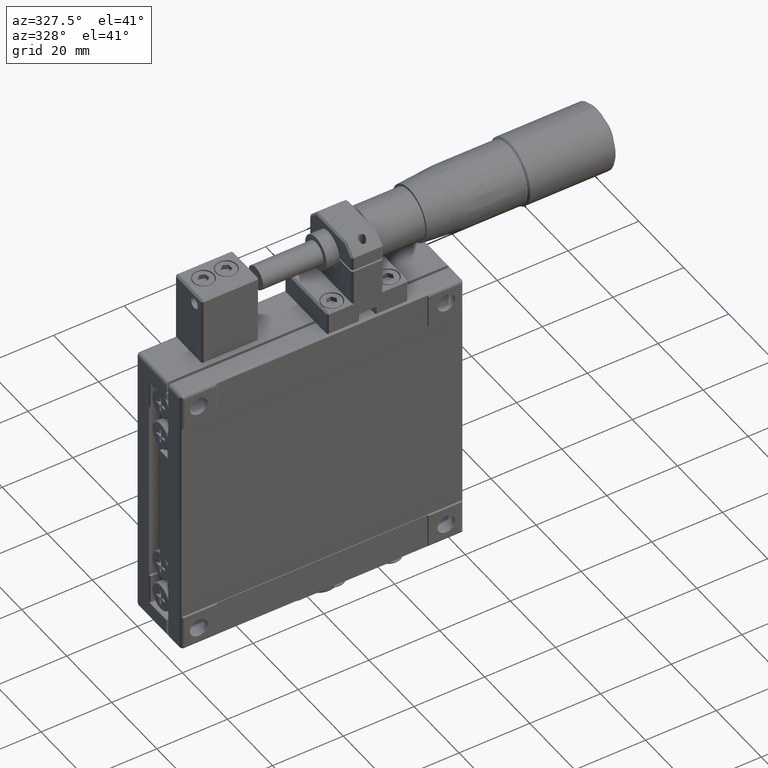
[diagram: clean part render]
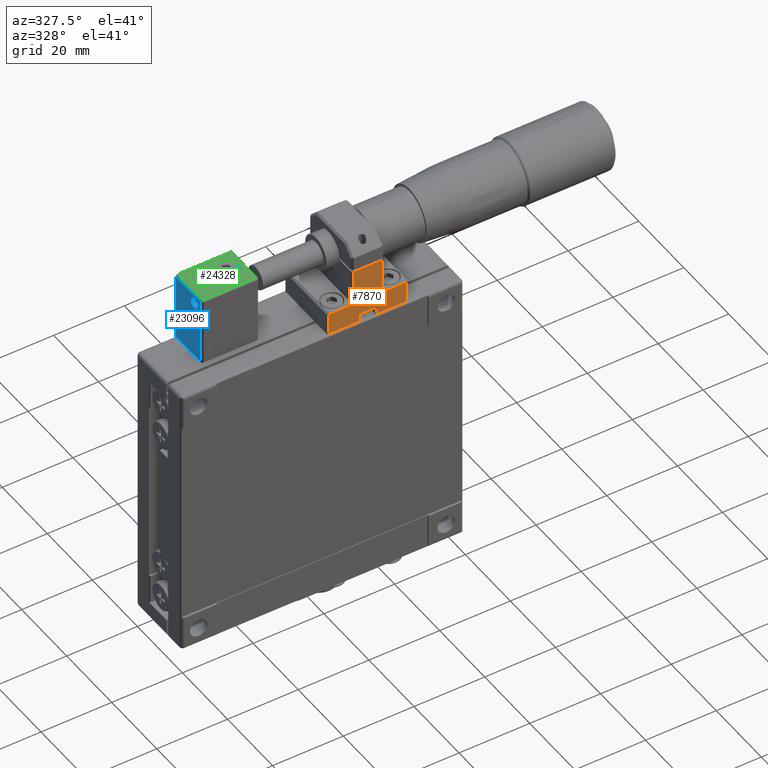
[diagram: same view with three faces highlighted in distinct colors, each labeled with its STEP entity id]
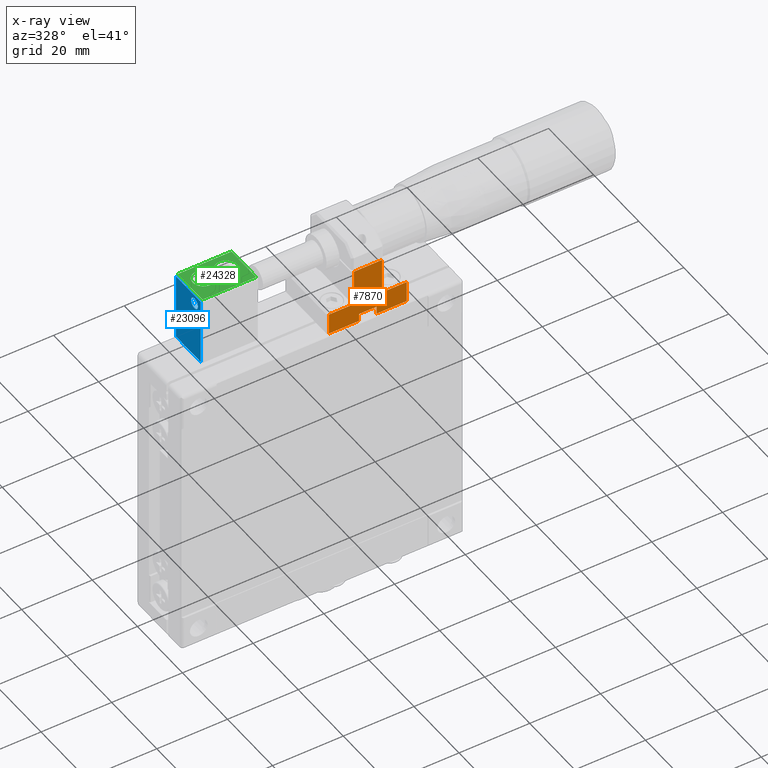
[diagram: x-ray of the same camera — body ghosted, the three highlighted faces saturated]
A machine part, auxiliary view with three faces highlighted in distinct colors.
The next image is the same camera in x-ray (body ghosted, the three faces saturated) — at least one of them is partly hidden behind the body in this view.
Their STEP definitions:

[orange] entity #7870 — the highlighted planar face has unit normal (0, -1, 0).
#1027 = EDGE_CURVE ( 'NONE', #26476, #29745, #16459, .T. ) ;
#1367 = LINE ( 'NONE', #16938, #67115 ) ;
#1692 = EDGE_CURVE ( 'NONE', #65323, #41707, #38551, .T. ) ;
#2338 = ORIENTED_EDGE ( 'NONE', *, *, #1692, .T. ) ;
#2421 = ORIENTED_EDGE ( 'NONE', *, *, #39198, .T. ) ;
#2515 = LINE ( 'NONE', #39122, #27799 ) ;
#3745 = ORIENTED_EDGE ( 'NONE', *, *, #17377, .F. ) ;
#4371 = CARTESIAN_POINT ( 'NONE',  ( -3.190117252931320202, -6.460050251256290288, 40.00000000000000000 ) ) ;
#6747 = ORIENTED_EDGE ( 'NONE', *, *, #11652, .T. ) ;
#6838 = CARTESIAN_POINT ( 'NONE',  ( -2.690117252931320202, -6.460050251256290288, 40.50000000000000000 ) ) ;
#7276 = VECTOR ( 'NONE', #36314, 1000.000000000000000 ) ;
#7870 = ADVANCED_FACE ( 'NONE', ( #35229 ), #55879, .T. ) ;
#7932 = VECTOR ( 'NONE', #32941, 1000.000000000000000 ) ;
#8022 = CARTESIAN_POINT ( 'NONE',  ( -3.190117252931320202, -6.460050251256290288, 46.50000000000000000 ) ) ;
#8332 = ORIENTED_EDGE ( 'NONE', *, *, #23468, .F. ) ;
#9405 = CARTESIAN_POINT ( 'NONE',  ( -2.690117252931320202, -6.460050251256290288, 46.50000000000000000 ) ) ;
#11652 = EDGE_CURVE ( 'NONE', #37458, #40289, #17638, .T. ) ;
#11866 = DIRECTION ( 'NONE',  ( 1.000000000000000000, 0.000000000000000000, 0.000000000000000000 ) ) ;
#13062 = LINE ( 'NONE', #49342, #39378 ) ;
#13589 = VECTOR ( 'NONE', #67077, 1000.000000000000000 ) ;
#13998 = CARTESIAN_POINT ( 'NONE',  ( -3.190117252931314873, -6.460050251256290288, 56.75000000000000000 ) ) ;
#14847 = ORIENTED_EDGE ( 'NONE', *, *, #33766, .T. ) ;
#14859 = CARTESIAN_POINT ( 'NONE',  ( 4.309882747068679798, -6.460050251256290288, 56.75000000000000000 ) ) ;
#15424 = VERTEX_POINT ( 'NONE', #61136 ) ;
#16459 = LINE ( 'NONE', #46665, #29542 ) ;
#16586 = CARTESIAN_POINT ( 'NONE',  ( 19.30988274706869845, -6.460050251256290288, 46.50000000000000000 ) ) ;
#16938 = CARTESIAN_POINT ( 'NONE',  ( 19.80988274706869845, -6.460050251256290288, 40.50000000000000000 ) ) ;
#17059 = CARTESIAN_POINT ( 'NONE',  ( 4.309882747068679798, -6.460050251256290288, 46.50000000000000000 ) ) ;
#17148 = VECTOR ( 'NONE', #19410, 1000.000000000000000 ) ;
#17377 = EDGE_CURVE ( 'NONE', #33738, #29745, #34366, .T. ) ;
#17638 = LINE ( 'NONE', #43745, #7932 ) ;
#17753 = CARTESIAN_POINT ( 'NONE',  ( 19.30988274706869845, -6.460050251256290288, 40.50000000000000000 ) ) ;
#17876 = EDGE_CURVE ( 'NONE', #62940, #48281, #1367, .T. ) ;
#19410 = DIRECTION ( 'NONE',  ( 0.000000000000000000, 0.000000000000000000, -1.000000000000000000 ) ) ;
#19462 = CARTESIAN_POINT ( 'NONE',  ( 10.80988274706868069, -6.460050251256290288, 40.50000000000000000 ) ) ;
#20466 = DIRECTION ( 'NONE',  ( 0.000000000000000000, 0.000000000000000000, -1.000000000000000000 ) ) ;
#20614 = EDGE_CURVE ( 'NONE', #41707, #37458, #32628, .T. ) ;
#23468 = EDGE_CURVE ( 'NONE', #56838, #40289, #28573, .T. ) ;
#23923 = ORIENTED_EDGE ( 'NONE', *, *, #55340, .F. ) ;
#26476 = VERTEX_POINT ( 'NONE', #39859 ) ;
#26993 = VECTOR ( 'NONE', #49383, 1000.000000000000000 ) ;
#27799 = VECTOR ( 'NONE', #44199, 1000.000000000000000 ) ;
#28573 = LINE ( 'NONE', #65856, #17148 ) ;
#28739 = AXIS2_PLACEMENT_3D ( 'NONE', #4371, #30805, #56220 ) ;
#28914 = DIRECTION ( 'NONE',  ( 1.000000000000000000, 0.000000000000000000, -2.040851148208009970E-16 ) ) ;
#29542 = VECTOR ( 'NONE', #32419, 1000.000000000000000 ) ;
#29745 = VERTEX_POINT ( 'NONE', #58512 ) ;
#29816 = CARTESIAN_POINT ( 'NONE',  ( 5.809882747068679798, -6.460050251256290288, 40.50000000000000000 ) ) ;
#30208 = VERTEX_POINT ( 'NONE', #16586 ) ;
#30471 = LINE ( 'NONE', #56891, #13589 ) ;
#30805 = DIRECTION ( 'NONE',  ( 0.000000000000000000, -1.000000000000000000, 0.000000000000000000 ) ) ;
#32241 = ORIENTED_EDGE ( 'NONE', *, *, #56174, .T. ) ;
#32419 = DIRECTION ( 'NONE',  ( 2.040851148208009970E-16, 0.000000000000000000, 1.000000000000000000 ) ) ;
#32628 = LINE ( 'NONE', #6838, #56154 ) ;
#32941 = DIRECTION ( 'NONE',  ( 1.000000000000000000, 0.000000000000000000, 0.000000000000000000 ) ) ;
#33738 = VERTEX_POINT ( 'NONE', #14859 ) ;
#33766 = EDGE_CURVE ( 'NONE', #48281, #30208, #30471, .T. ) ;
#34366 = LINE ( 'NONE', #13998, #38947 ) ;
#34633 = VECTOR ( 'NONE', #20466, 1000.000000000000000 ) ;
#35051 = CARTESIAN_POINT ( 'NONE',  ( -2.690117252931314873, -6.460050251256290288, 40.50000000000000000 ) ) ;
#35229 = FACE_OUTER_BOUND ( 'NONE', #51497, .T. ) ;
#35910 = CARTESIAN_POINT ( 'NONE',  ( 5.809882747068679798, -6.460050251256290288, 42.70000000000000284 ) ) ;
#36314 = DIRECTION ( 'NONE',  ( -1.000000000000000000, 0.000000000000000000, 9.912705577010330480E-16 ) ) ;
#37458 = VERTEX_POINT ( 'NONE', #35051 ) ;
#38551 = LINE ( 'NONE', #8022, #26993 ) ;
#38947 = VECTOR ( 'NONE', #28914, 1000.000000000000000 ) ;
#39122 = CARTESIAN_POINT ( 'NONE',  ( -3.190117252931320202, -6.460050251256290288, 42.70000000000000284 ) ) ;
#39198 = EDGE_CURVE ( 'NONE', #33738, #65323, #51333, .T. ) ;
#39378 = VECTOR ( 'NONE', #54433, 1000.000000000000000 ) ;
#39859 = CARTESIAN_POINT ( 'NONE',  ( 12.30988274706868069, -6.460050251256290288, 46.50000000000000000 ) ) ;
#40289 = VERTEX_POINT ( 'NONE', #29816 ) ;
#41707 = VERTEX_POINT ( 'NONE', #9405 ) ;
#42042 = EDGE_CURVE ( 'NONE', #62940, #15424, #13062, .T. ) ;
#42066 = LINE ( 'NONE', #62059, #7276 ) ;
#43745 = CARTESIAN_POINT ( 'NONE',  ( 19.80988274706869845, -6.460050251256290288, 40.50000000000000000 ) ) ;
#44199 = DIRECTION ( 'NONE',  ( -1.000000000000000000, 0.000000000000000000, 0.000000000000000000 ) ) ;
#46618 = ORIENTED_EDGE ( 'NONE', *, *, #42042, .F. ) ;
#46665 = CARTESIAN_POINT ( 'NONE',  ( 12.30988274706868069, -6.460050251256290288, 61.00000000000000000 ) ) ;
#48198 = DIRECTION ( 'NONE',  ( 0.000000000000000000, 0.000000000000000000, -1.000000000000000000 ) ) ;
#48281 = VERTEX_POINT ( 'NONE', #17753 ) ;
#49342 = CARTESIAN_POINT ( 'NONE',  ( 10.80988274706868069, -6.460050251256290288, 40.00000000000000000 ) ) ;
#49383 = DIRECTION ( 'NONE',  ( -1.000000000000000000, 0.000000000000000000, 0.000000000000000000 ) ) ;
#49451 = ORIENTED_EDGE ( 'NONE', *, *, #1027, .T. ) ;
#51333 = LINE ( 'NONE', #56735, #34633 ) ;
#51497 = EDGE_LOOP ( 'NONE', ( #46618, #51946, #14847, #32241, #49451, #3745, #2421, #2338, #60576, #6747, #8332, #23923 ) ) ;
#51946 = ORIENTED_EDGE ( 'NONE', *, *, #17876, .T. ) ;
#54433 = DIRECTION ( 'NONE',  ( 0.000000000000000000, 0.000000000000000000, 1.000000000000000000 ) ) ;
#55340 = EDGE_CURVE ( 'NONE', #15424, #56838, #2515, .T. ) ;
#55879 = PLANE ( 'NONE',  #28739 ) ;
#56154 = VECTOR ( 'NONE', #48198, 1000.000000000000000 ) ;
#56174 = EDGE_CURVE ( 'NONE', #30208, #26476, #42066, .T. ) ;
#56220 = DIRECTION ( 'NONE',  ( 0.000000000000000000, 0.000000000000000000, -1.000000000000000000 ) ) ;
#56735 = CARTESIAN_POINT ( 'NONE',  ( 4.309882747068679798, -6.460050251256290288, 47.00000000000000000 ) ) ;
#56838 = VERTEX_POINT ( 'NONE', #35910 ) ;
#56891 = CARTESIAN_POINT ( 'NONE',  ( 19.30988274706869845, -6.460050251256290288, 47.00000000000000000 ) ) ;
#58512 = CARTESIAN_POINT ( 'NONE',  ( 12.30988274706868069, -6.460050251256290288, 56.75000000000000000 ) ) ;
#60576 = ORIENTED_EDGE ( 'NONE', *, *, #20614, .T. ) ;
#61136 = CARTESIAN_POINT ( 'NONE',  ( 10.80988274706868069, -6.460050251256290288, 42.70000000000000284 ) ) ;
#62059 = CARTESIAN_POINT ( 'NONE',  ( 12.80988274706868069, -6.460050251256290288, 46.50000000000000000 ) ) ;
#62940 = VERTEX_POINT ( 'NONE', #19462 ) ;
#65323 = VERTEX_POINT ( 'NONE', #17059 ) ;
#65856 = CARTESIAN_POINT ( 'NONE',  ( 5.809882747068679798, -6.460050251256290288, 40.00000000000000000 ) ) ;
#67077 = DIRECTION ( 'NONE',  ( 0.000000000000000000, 0.000000000000000000, 1.000000000000000000 ) ) ;
#67115 = VECTOR ( 'NONE', #11866, 1000.000000000000000 ) ;

[blue] entity #23096 — the highlighted planar face has unit normal (1, 0, 0).
#3059 = DIRECTION ( 'NONE',  ( 0.000000000000000000, 0.000000000000000000, 1.000000000000000000 ) ) ;
#3490 = VERTEX_POINT ( 'NONE', #5397 ) ;
#5069 = CARTESIAN_POINT ( 'NONE',  ( -34.04011725293134560, 1.239949748743726099, 59.50000000000000000 ) ) ;
#5256 = DIRECTION ( 'NONE',  ( 1.000000000000000000, 6.661338147750860356E-16, 4.788365847112799953E-16 ) ) ;
#5397 = CARTESIAN_POINT ( 'NONE',  ( -34.04011725293134560, 12.23994974874375963, 40.50000000000000000 ) ) ;
#5662 = VERTEX_POINT ( 'NONE', #56090 ) ;
#5994 = DIRECTION ( 'NONE',  ( 6.661338147750880078E-16, 1.000000000000000000, 1.966852035261059889E-16 ) ) ;
#6858 = VECTOR ( 'NONE', #50667, 1000.000000000000000 ) ;
#8578 = VECTOR ( 'NONE', #18843, 1000.000000000000000 ) ;
#10331 = PLANE ( 'NONE',  #53884 ) ;
#10630 = AXIS2_PLACEMENT_3D ( 'NONE', #12236, #43426, #3059 ) ;
#11262 = EDGE_CURVE ( 'NONE', #33024, #40386, #28962, .T. ) ;
#12236 = CARTESIAN_POINT ( 'NONE',  ( -34.04011725293134560, 4.039949748743709712, 57.00000000000000000 ) ) ;
#13923 = EDGE_CURVE ( 'NONE', #5662, #30772, #46331, .T. ) ;
#15737 = DIRECTION ( 'NONE',  ( -6.661338147750860356E-16, 1.000000000000000000, 0.000000000000000000 ) ) ;
#16838 = LINE ( 'NONE', #48052, #32097 ) ;
#17875 = EDGE_LOOP ( 'NONE', ( #66757, #44696, #37204, #42181 ) ) ;
#18843 = DIRECTION ( 'NONE',  ( 4.788365847112799953E-16, -1.966852035261094894E-16, -1.000000000000000000 ) ) ;
#23096 = ADVANCED_FACE ( 'NONE', ( #64024, #28078 ), #10331, .F. ) ;
#25384 = EDGE_CURVE ( 'NONE', #3490, #33024, #16838, .T. ) ;
#28078 = FACE_OUTER_BOUND ( 'NONE', #17875, .T. ) ;
#28962 = LINE ( 'NONE', #36942, #6858 ) ;
#29642 = AXIS2_PLACEMENT_3D ( 'NONE', #38289, #53867, #64698 ) ;
#30772 = VERTEX_POINT ( 'NONE', #31715 ) ;
#31715 = CARTESIAN_POINT ( 'NONE',  ( -34.04011725293134560, 4.039949748743709712, 58.50000000000000000 ) ) ;
#31783 = LINE ( 'NONE', #52451, #46635 ) ;
#32097 = VECTOR ( 'NONE', #38773, 1000.000000000000000 ) ;
#33024 = VERTEX_POINT ( 'NONE', #40202 ) ;
#35293 = EDGE_LOOP ( 'NONE', ( #62076, #44684 ) ) ;
#36942 = CARTESIAN_POINT ( 'NONE',  ( -34.04011725293134560, 1.239949748743726099, 60.00000000000000000 ) ) ;
#37204 = ORIENTED_EDGE ( 'NONE', *, *, #40636, .T. ) ;
#38289 = CARTESIAN_POINT ( 'NONE',  ( -34.04011725293134560, 4.039949748743709712, 57.00000000000000000 ) ) ;
#38773 = DIRECTION ( 'NONE',  ( -6.661338147750880078E-16, -1.000000000000000000, -1.966852035261059889E-16 ) ) ;
#40202 = CARTESIAN_POINT ( 'NONE',  ( -34.04011725293134560, 1.239949748743746083, 40.50000000000000000 ) ) ;
#40386 = VERTEX_POINT ( 'NONE', #5069 ) ;
#40636 = EDGE_CURVE ( 'NONE', #40386, #61187, #31783, .T. ) ;
#41845 = CARTESIAN_POINT ( 'NONE',  ( -34.04011725293134560, 12.73994974874375785, 60.00000000000000000 ) ) ;
#42181 = ORIENTED_EDGE ( 'NONE', *, *, #49686, .T. ) ;
#42507 = EDGE_CURVE ( 'NONE', #30772, #5662, #58867, .T. ) ;
#43426 = DIRECTION ( 'NONE',  ( -1.000000000000000000, -6.661338147750850496E-16, 0.000000000000000000 ) ) ;
#44684 = ORIENTED_EDGE ( 'NONE', *, *, #13923, .F. ) ;
#44696 = ORIENTED_EDGE ( 'NONE', *, *, #11262, .T. ) ;
#45630 = LINE ( 'NONE', #65293, #8578 ) ;
#46331 = CIRCLE ( 'NONE', #10630, 1.500000000000001332 ) ;
#46635 = VECTOR ( 'NONE', #5994, 1000.000000000000000 ) ;
#48052 = CARTESIAN_POINT ( 'NONE',  ( -34.04011725293134560, 12.73994974874375785, 40.50000000000000000 ) ) ;
#49686 = EDGE_CURVE ( 'NONE', #61187, #3490, #45630, .T. ) ;
#50215 = CARTESIAN_POINT ( 'NONE',  ( -34.04011725293134560, 12.23994974874370101, 59.50000000000000000 ) ) ;
#50667 = DIRECTION ( 'NONE',  ( -4.788365847112799953E-16, 1.966852035261094894E-16, 1.000000000000000000 ) ) ;
#52451 = CARTESIAN_POINT ( 'NONE',  ( -34.04011725293134560, 12.73994974874375785, 59.50000000000000000 ) ) ;
#53867 = DIRECTION ( 'NONE',  ( -1.000000000000000000, -6.661338147750850496E-16, 0.000000000000000000 ) ) ;
#53884 = AXIS2_PLACEMENT_3D ( 'NONE', #41845, #5256, #15737 ) ;
#56090 = CARTESIAN_POINT ( 'NONE',  ( -34.04011725293134560, 4.039949748743745239, 55.50000000000000000 ) ) ;
#58867 = CIRCLE ( 'NONE', #29642, 1.500000000000001332 ) ;
#61187 = VERTEX_POINT ( 'NONE', #50215 ) ;
#62076 = ORIENTED_EDGE ( 'NONE', *, *, #42507, .F. ) ;
#64024 = FACE_BOUND ( 'NONE', #35293, .T. ) ;
#64698 = DIRECTION ( 'NONE',  ( 0.000000000000000000, 0.000000000000000000, 1.000000000000000000 ) ) ;
#65293 = CARTESIAN_POINT ( 'NONE',  ( -34.04011725293134560, 12.23994974874370101, 60.00000000000000000 ) ) ;
#66757 = ORIENTED_EDGE ( 'NONE', *, *, #25384, .T. ) ;

[green] entity #24328 — the highlighted planar face has unit normal (-0, -0, -1).
#2032 = VECTOR ( 'NONE', #5992, 1000.000000000000000 ) ;
#2774 = DIRECTION ( 'NONE',  ( 1.000000000000000000, 5.782411586589358625E-16, 0.000000000000000000 ) ) ;
#3124 = VECTOR ( 'NONE', #65767, 1000.000000000000000 ) ;
#5341 = ORIENTED_EDGE ( 'NONE', *, *, #46070, .T. ) ;
#5992 = DIRECTION ( 'NONE',  ( -6.661338147750880078E-16, -1.000000000000000000, -1.966852035261059889E-16 ) ) ;
#7067 = VERTEX_POINT ( 'NONE', #15698 ) ;
#8687 = CARTESIAN_POINT ( 'NONE',  ( -34.04011725293134560, 12.23994974874370101, 60.00000000000000000 ) ) ;
#9328 = DIRECTION ( 'NONE',  ( -1.137314799780061891E-31, 1.966852035261094894E-16, 1.000000000000000000 ) ) ;
#9431 = EDGE_CURVE ( 'NONE', #66422, #21099, #53424, .T. ) ;
#11771 = DIRECTION ( 'NONE',  ( -3.053642371135954895E-16, -1.966852035261094894E-16, -1.000000000000000000 ) ) ;
#12574 = CARTESIAN_POINT ( 'NONE',  ( -18.34011725293134987, 12.73994974874380048, 60.00000000000000000 ) ) ;
#13562 = LINE ( 'NONE', #12574, #14918 ) ;
#14070 = DIRECTION ( 'NONE',  ( 1.000000000000000000, 5.782411586589358625E-16, 0.000000000000000000 ) ) ;
#14100 = EDGE_LOOP ( 'NONE', ( #23742, #55453 ) ) ;
#14345 = VECTOR ( 'NONE', #44618, 1000.000000000000000 ) ;
#14451 = VERTEX_POINT ( 'NONE', #22170 ) ;
#14561 = CARTESIAN_POINT ( 'NONE',  ( -17.84011725293130013, 1.239949748743744085, 60.00000000000000000 ) ) ;
#14918 = VECTOR ( 'NONE', #43760, 1000.000000000000000 ) ;
#15698 = CARTESIAN_POINT ( 'NONE',  ( -19.69011725293124826, 7.739949748743780056, 60.00000000000000000 ) ) ;
#16672 = DIRECTION ( 'NONE',  ( 1.000000000000000000, 5.782411586589358625E-16, 0.000000000000000000 ) ) ;
#16836 = FACE_OUTER_BOUND ( 'NONE', #20917, .T. ) ;
#17165 = EDGE_CURVE ( 'NONE', #50682, #7067, #45381, .T. ) ;
#20109 = EDGE_CURVE ( 'NONE', #64151, #41076, #57844, .T. ) ;
#20554 = CARTESIAN_POINT ( 'NONE',  ( -26.19011725293130155, 7.739949748743780056, 60.00000000000000000 ) ) ;
#20677 = EDGE_CURVE ( 'NONE', #41076, #14451, #24729, .T. ) ;
#20917 = EDGE_LOOP ( 'NONE', ( #28153, #27816, #22018, #5341 ) ) ;
#21099 = VERTEX_POINT ( 'NONE', #55186 ) ;
#21441 = DIRECTION ( 'NONE',  ( 1.000000000000000000, 5.782411586589358625E-16, 0.000000000000000000 ) ) ;
#21771 = CARTESIAN_POINT ( 'NONE',  ( -29.19011725293135129, 7.739949748743780056, 60.00000000000000000 ) ) ;
#22018 = ORIENTED_EDGE ( 'NONE', *, *, #20677, .T. ) ;
#22170 = CARTESIAN_POINT ( 'NONE',  ( -18.34011725293130013, 1.239949748743744085, 60.00000000000000000 ) ) ;
#22285 = CARTESIAN_POINT ( 'NONE',  ( -33.54011725293129587, 12.23994974874370101, 60.00000000000000000 ) ) ;
#23742 = ORIENTED_EDGE ( 'NONE', *, *, #9431, .F. ) ;
#23926 = LINE ( 'NONE', #8687, #14345 ) ;
#24155 = AXIS2_PLACEMENT_3D ( 'NONE', #38398, #56557, #2774 ) ;
#24328 = ADVANCED_FACE ( 'NONE', ( #41605, #57542, #16836 ), #37539, .F. ) ;
#24729 = LINE ( 'NONE', #14561, #3124 ) ;
#26608 = CIRCLE ( 'NONE', #32049, 2.999999999999999112 ) ;
#26649 = AXIS2_PLACEMENT_3D ( 'NONE', #51977, #52315, #21441 ) ;
#27319 = CARTESIAN_POINT ( 'NONE',  ( -25.69011725293125181, 7.739949748743780056, 60.00000000000000000 ) ) ;
#27330 = ORIENTED_EDGE ( 'NONE', *, *, #54780, .F. ) ;
#27816 = ORIENTED_EDGE ( 'NONE', *, *, #20109, .T. ) ;
#28027 = ORIENTED_EDGE ( 'NONE', *, *, #17165, .F. ) ;
#28153 = ORIENTED_EDGE ( 'NONE', *, *, #33070, .T. ) ;
#32049 = AXIS2_PLACEMENT_3D ( 'NONE', #21771, #32296, #16672 ) ;
#32296 = DIRECTION ( 'NONE',  ( -1.137314799780061891E-31, 1.966852035261094894E-16, 1.000000000000000000 ) ) ;
#32775 = CARTESIAN_POINT ( 'NONE',  ( -33.54011725293129587, 12.73994974874375785, 60.00000000000000000 ) ) ;
#32793 = DIRECTION ( 'NONE',  ( -1.000000000000000000, 0.000000000000000000, 3.053642371135954895E-16 ) ) ;
#33070 = EDGE_CURVE ( 'NONE', #43447, #64151, #23926, .T. ) ;
#35266 = CARTESIAN_POINT ( 'NONE',  ( -33.54011725293129587, 1.239949748743729874, 60.00000000000000000 ) ) ;
#37539 = PLANE ( 'NONE',  #58181 ) ;
#38398 = CARTESIAN_POINT ( 'NONE',  ( -29.19011725293135129, 7.739949748743780056, 60.00000000000000000 ) ) ;
#41076 = VERTEX_POINT ( 'NONE', #35266 ) ;
#41605 = FACE_BOUND ( 'NONE', #14100, .T. ) ;
#43447 = VERTEX_POINT ( 'NONE', #59549 ) ;
#43760 = DIRECTION ( 'NONE',  ( 6.661338147750880078E-16, 1.000000000000000000, 1.966852035261059889E-16 ) ) ;
#44618 = DIRECTION ( 'NONE',  ( -1.000000000000000000, -6.661338147750850496E-16, 3.053642371135960318E-16 ) ) ;
#45381 = CIRCLE ( 'NONE', #65938, 2.999999999999999112 ) ;
#46070 = EDGE_CURVE ( 'NONE', #14451, #43447, #13562, .T. ) ;
#50682 = VERTEX_POINT ( 'NONE', #27319 ) ;
#51977 = CARTESIAN_POINT ( 'NONE',  ( -22.69011725293124826, 7.739949748743780056, 60.00000000000000000 ) ) ;
#52315 = DIRECTION ( 'NONE',  ( -1.137314799780061891E-31, 1.966852035261094894E-16, 1.000000000000000000 ) ) ;
#53424 = CIRCLE ( 'NONE', #24155, 2.999999999999999112 ) ;
#53882 = EDGE_CURVE ( 'NONE', #21099, #66422, #26608, .T. ) ;
#54780 = EDGE_CURVE ( 'NONE', #7067, #50682, #55845, .T. ) ;
#55186 = CARTESIAN_POINT ( 'NONE',  ( -32.19011725293134418, 7.739949748743780056, 60.00000000000000000 ) ) ;
#55453 = ORIENTED_EDGE ( 'NONE', *, *, #53882, .F. ) ;
#55756 = CARTESIAN_POINT ( 'NONE',  ( -22.69011725293124826, 7.739949748743780056, 60.00000000000000000 ) ) ;
#55845 = CIRCLE ( 'NONE', #26649, 2.999999999999999112 ) ;
#56557 = DIRECTION ( 'NONE',  ( -1.137314799780061891E-31, 1.966852035261094894E-16, 1.000000000000000000 ) ) ;
#57542 = FACE_BOUND ( 'NONE', #63011, .T. ) ;
#57844 = LINE ( 'NONE', #32775, #2032 ) ;
#58181 = AXIS2_PLACEMENT_3D ( 'NONE', #58198, #11771, #32793 ) ;
#58198 = CARTESIAN_POINT ( 'NONE',  ( -34.04011725293134560, 12.73994974874375785, 60.00000000000000000 ) ) ;
#59549 = CARTESIAN_POINT ( 'NONE',  ( -18.34011725293130013, 12.23994974874380048, 60.00000000000000000 ) ) ;
#63011 = EDGE_LOOP ( 'NONE', ( #27330, #28027 ) ) ;
#64151 = VERTEX_POINT ( 'NONE', #22285 ) ;
#65767 = DIRECTION ( 'NONE',  ( 1.000000000000000000, 6.661338147750850496E-16, -3.053642371135960318E-16 ) ) ;
#65938 = AXIS2_PLACEMENT_3D ( 'NONE', #55756, #9328, #14070 ) ;
#66422 = VERTEX_POINT ( 'NONE', #20554 ) ;